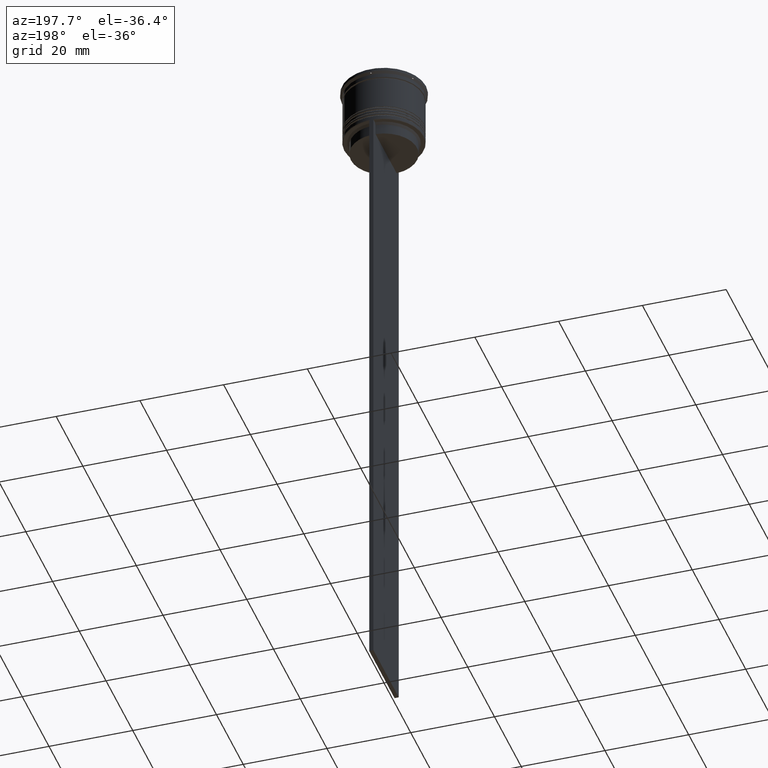
[diagram: clean part render]
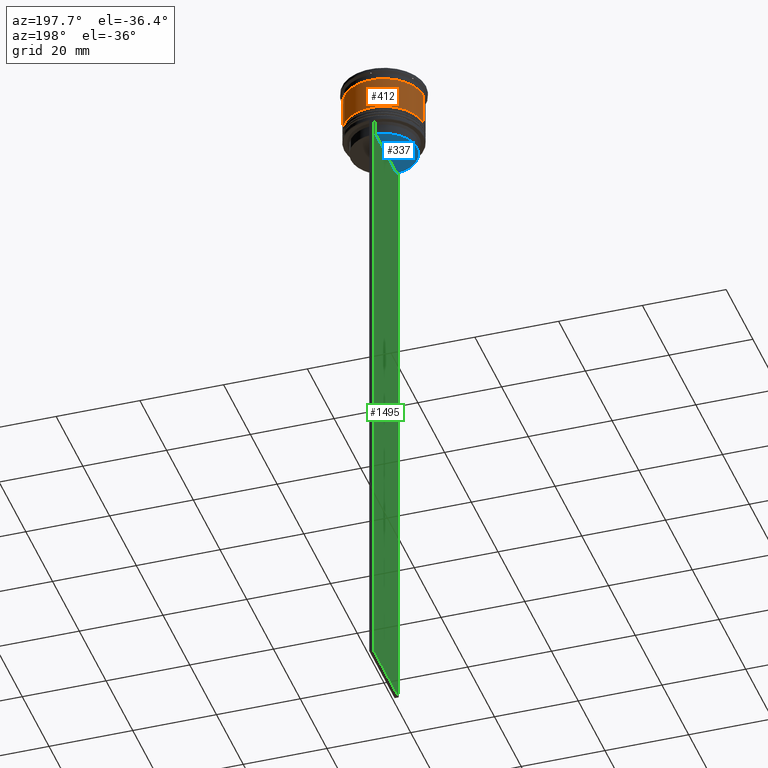
[diagram: same view with three faces highlighted in distinct colors, each labeled with its STEP entity id]
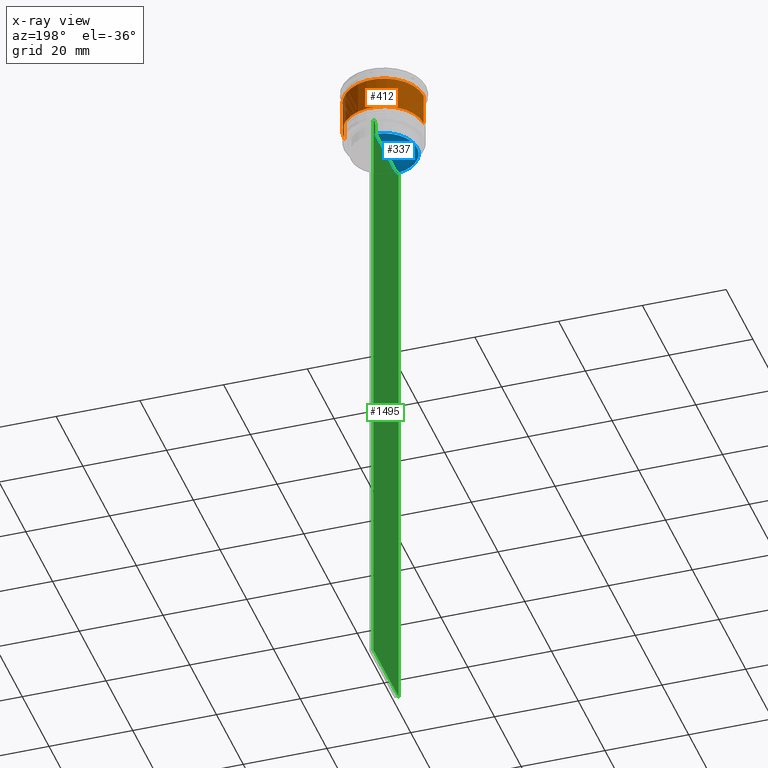
[diagram: x-ray of the same camera — body ghosted, the three highlighted faces saturated]
A machine part, auxiliary view with three faces highlighted in distinct colors.
The next image is the same camera in x-ray (body ghosted, the three faces saturated) — at least one of them is partly hidden behind the body in this view.
Their STEP definitions:

[orange] entity #412 — the highlighted cylindrical surface (partial cylindrical patch) has radius 9.5 mm, axis along (-0, -0, 1).
#156 = CARTESIAN_POINT ( 'NONE',  ( 0.000000000000000000, 0.000000000000000000, -10.50000000000000000 ) ) ;
#196 = DIRECTION ( 'NONE',  ( 1.000000000000000000, 0.000000000000000000, 0.000000000000000000 ) ) ;
#296 = FACE_OUTER_BOUND ( 'NONE', #2105, .T. ) ;
#319 = CARTESIAN_POINT ( 'NONE',  ( 0.000000000000000000, 0.000000000000000000, -2.700000000000001066 ) ) ;
#349 = CIRCLE ( 'NONE', #999, 9.499999999999998224 ) ;
#408 = VERTEX_POINT ( 'NONE', #1107 ) ;
#412 = ADVANCED_FACE ( 'NONE', ( #296 ), #1442, .T. ) ;
#451 = VECTOR ( 'NONE', #738, 1000.000000000000000 ) ;
#528 = CARTESIAN_POINT ( 'NONE',  ( 9.500000000000001776, 0.000000000000000000, -10.50000000000000000 ) ) ;
#563 = AXIS2_PLACEMENT_3D ( 'NONE', #156, #603, #196 ) ;
#603 = DIRECTION ( 'NONE',  ( -0.000000000000000000, -0.000000000000000000, 1.000000000000000000 ) ) ;
#736 = EDGE_CURVE ( 'NONE', #408, #2333, #1173, .T. ) ;
#738 = DIRECTION ( 'NONE',  ( -0.000000000000000000, -0.000000000000000000, 1.000000000000000000 ) ) ;
#760 = CARTESIAN_POINT ( 'NONE',  ( 9.500000000000000000, 0.000000000000000000, 0.000000000000000000 ) ) ;
#763 = CARTESIAN_POINT ( 'NONE',  ( -9.500000000000000000, 1.163414459189985485E-15, 0.000000000000000000 ) ) ;
#889 = EDGE_CURVE ( 'NONE', #2398, #408, #1131, .T. ) ;
#936 = DIRECTION ( 'NONE',  ( 1.000000000000000000, 0.000000000000000000, 0.000000000000000000 ) ) ;
#957 = DIRECTION ( 'NONE',  ( -0.000000000000000000, -0.000000000000000000, 1.000000000000000000 ) ) ;
#999 = AXIS2_PLACEMENT_3D ( 'NONE', #319, #2534, #936 ) ;
#1004 = DIRECTION ( 'NONE',  ( -0.000000000000000000, -0.000000000000000000, 1.000000000000000000 ) ) ;
#1074 = ORIENTED_EDGE ( 'NONE', *, *, #1361, .F. ) ;
#1107 = CARTESIAN_POINT ( 'NONE',  ( -9.500000000000001776, 1.163414459189985682E-15, -10.50000000000000000 ) ) ;
#1131 = CIRCLE ( 'NONE', #563, 9.500000000000001776 ) ;
#1173 = LINE ( 'NONE', #763, #2629 ) ;
#1361 = EDGE_CURVE ( 'NONE', #1977, #2333, #349, .T. ) ;
#1442 = CYLINDRICAL_SURFACE ( 'NONE', #2293, 9.500000000000000000 ) ;
#1662 = CARTESIAN_POINT ( 'NONE',  ( 9.499999999999998224, 0.000000000000000000, -2.700000000000001066 ) ) ;
#1731 = ORIENTED_EDGE ( 'NONE', *, *, #889, .T. ) ;
#1762 = LINE ( 'NONE', #760, #451 ) ;
#1977 = VERTEX_POINT ( 'NONE', #1662 ) ;
#2041 = CARTESIAN_POINT ( 'NONE',  ( 0.000000000000000000, 0.000000000000000000, 0.000000000000000000 ) ) ;
#2105 = EDGE_LOOP ( 'NONE', ( #1731, #2474, #1074, #2571 ) ) ;
#2293 = AXIS2_PLACEMENT_3D ( 'NONE', #2041, #1004, #2642 ) ;
#2333 = VERTEX_POINT ( 'NONE', #2340 ) ;
#2340 = CARTESIAN_POINT ( 'NONE',  ( -9.499999999999998224, 1.163414459189985485E-15, -2.700000000000001066 ) ) ;
#2398 = VERTEX_POINT ( 'NONE', #528 ) ;
#2474 = ORIENTED_EDGE ( 'NONE', *, *, #736, .T. ) ;
#2483 = EDGE_CURVE ( 'NONE', #2398, #1977, #1762, .T. ) ;
#2534 = DIRECTION ( 'NONE',  ( -0.000000000000000000, -0.000000000000000000, 1.000000000000000000 ) ) ;
#2571 = ORIENTED_EDGE ( 'NONE', *, *, #2483, .F. ) ;
#2629 = VECTOR ( 'NONE', #957, 1000.000000000000000 ) ;
#2642 = DIRECTION ( 'NONE',  ( 1.000000000000000000, 0.000000000000000000, 0.000000000000000000 ) ) ;

[blue] entity #337 — the highlighted planar face has unit normal (0, -0, 1).
#82 = CARTESIAN_POINT ( 'NONE',  ( -0.5000000000000000000, 7.899999999999994138, -17.00000000000000000 ) ) ;
#85 = AXIS2_PLACEMENT_3D ( 'NONE', #1532, #1306, #2614 ) ;
#337 = ADVANCED_FACE ( 'NONE', ( #722 ), #1942, .F. ) ;
#366 = VERTEX_POINT ( 'NONE', #2134 ) ;
#461 = ORIENTED_EDGE ( 'NONE', *, *, #1827, .F. ) ;
#701 = VERTEX_POINT ( 'NONE', #1733 ) ;
#722 = FACE_OUTER_BOUND ( 'NONE', #778, .T. ) ;
#739 = DIRECTION ( 'NONE',  ( -0.000000000000000000, -0.000000000000000000, 1.000000000000000000 ) ) ;
#778 = EDGE_LOOP ( 'NONE', ( #461, #1063 ) ) ;
#825 = VECTOR ( 'NONE', #1938, 1000.000000000000000 ) ;
#1063 = ORIENTED_EDGE ( 'NONE', *, *, #1319, .T. ) ;
#1306 = DIRECTION ( 'NONE',  ( 0.000000000000000000, -0.000000000000000000, 1.000000000000000000 ) ) ;
#1319 = EDGE_CURVE ( 'NONE', #366, #701, #1515, .T. ) ;
#1515 = LINE ( 'NONE', #82, #825 ) ;
#1532 = CARTESIAN_POINT ( 'NONE',  ( 0.000000000000000000, 7.899999999999994138, -17.00000000000000000 ) ) ;
#1643 = AXIS2_PLACEMENT_3D ( 'NONE', #2530, #739, #2186 ) ;
#1733 = CARTESIAN_POINT ( 'NONE',  ( -0.5000000000000000000, -7.884161337770803080, -17.00000000000000000 ) ) ;
#1827 = EDGE_CURVE ( 'NONE', #366, #701, #2346, .T. ) ;
#1938 = DIRECTION ( 'NONE',  ( 0.000000000000000000, -1.000000000000000000, 0.000000000000000000 ) ) ;
#1942 = PLANE ( 'NONE',  #85 ) ;
#2134 = CARTESIAN_POINT ( 'NONE',  ( -0.5000000000000000000, 7.884161337770803080, -17.00000000000000000 ) ) ;
#2186 = DIRECTION ( 'NONE',  ( 1.000000000000000000, 0.000000000000000000, 0.000000000000000000 ) ) ;
#2346 = CIRCLE ( 'NONE', #1643, 7.899999999999994138 ) ;
#2530 = CARTESIAN_POINT ( 'NONE',  ( 0.000000000000000000, 0.000000000000000000, -17.00000000000000000 ) ) ;
#2614 = DIRECTION ( 'NONE',  ( 1.000000000000000000, 0.000000000000000000, 0.000000000000000000 ) ) ;

[green] entity #1495 — the highlighted planar face has unit normal (-1, 0, 0).
#63 = DIRECTION ( 'NONE',  ( 0.000000000000000000, -1.000000000000000000, 0.000000000000000000 ) ) ;
#82 = CARTESIAN_POINT ( 'NONE',  ( -0.5000000000000000000, 7.899999999999994138, -17.00000000000000000 ) ) ;
#89 = CARTESIAN_POINT ( 'NONE',  ( -0.5000000000000000000, -9.500000000000001776, -14.00000000000000178 ) ) ;
#90 = VECTOR ( 'NONE', #1500, 1000.000000000000000 ) ;
#118 = CARTESIAN_POINT ( 'NONE',  ( -0.5000000000000000000, -9.500000000000001776, -14.00000000000000178 ) ) ;
#149 = ORIENTED_EDGE ( 'NONE', *, *, #1824, .F. ) ;
#155 = EDGE_CURVE ( 'NONE', #564, #240, #263, .T. ) ;
#171 = CARTESIAN_POINT ( 'NONE',  ( -0.5000000000000000000, -9.500000000000001776, 5.026297590440445440 ) ) ;
#193 = CARTESIAN_POINT ( 'NONE',  ( -0.5000000000000000000, 8.218133718559618828, -14.16667606394327983 ) ) ;
#240 = VERTEX_POINT ( 'NONE', #627 ) ;
#263 = LINE ( 'NONE', #1688, #2495 ) ;
#280 = VERTEX_POINT ( 'NONE', #2525 ) ;
#327 = DIRECTION ( 'NONE',  ( 0.000000000000000000, 0.000000000000000000, -1.000000000000000000 ) ) ;
#366 = VERTEX_POINT ( 'NONE', #2134 ) ;
#369 = DIRECTION ( 'NONE',  ( 0.000000000000000000, 0.000000000000000000, 1.000000000000000000 ) ) ;
#374 = CARTESIAN_POINT ( 'NONE',  ( -0.5000000000000000000, -8.385105843100605583, -14.00000000000000178 ) ) ;
#505 = LINE ( 'NONE', #89, #2307 ) ;
#519 = CARTESIAN_POINT ( 'NONE',  ( -0.5000000000000000000, 9.499999999999998224, 5.026297590440445440 ) ) ;
#521 = EDGE_LOOP ( 'NONE', ( #1958, #1493, #2141, #777, #2171, #1527, #892, #2576, #149, #1875, #921, #2513 ) ) ;
#554 = CARTESIAN_POINT ( 'NONE',  ( -0.5000000000000000000, -7.884161337770803080, 0.000000000000000000 ) ) ;
#564 = VERTEX_POINT ( 'NONE', #895 ) ;
#627 = CARTESIAN_POINT ( 'NONE',  ( -0.5000000000000000000, 9.499999999999998224, -163.9999999999999716 ) ) ;
#674 = CARTESIAN_POINT ( 'NONE',  ( -0.5000000000000000000, -7.884161337770803080, -14.50000000000000000 ) ) ;
#701 = VERTEX_POINT ( 'NONE', #1733 ) ;
#714 = DIRECTION ( 'NONE',  ( 0.000000000000000000, -1.000000000000000000, 0.000000000000000000 ) ) ;
#742 = VERTEX_POINT ( 'NONE', #2180 ) ;
#764 = EDGE_CURVE ( 'NONE', #2608, #240, #2368, .T. ) ;
#765 = PLANE ( 'NONE',  #1854 ) ;
#777 = ORIENTED_EDGE ( 'NONE', *, *, #764, .T. ) ;
#789 = VECTOR ( 'NONE', #2663, 1000.000000000000000 ) ;
#797 = VERTEX_POINT ( 'NONE', #2584 ) ;
#825 = VECTOR ( 'NONE', #1938, 1000.000000000000000 ) ;
#873 = DIRECTION ( 'NONE',  ( 0.000000000000000000, 1.000000000000000000, 0.000000000000000000 ) ) ;
#892 = ORIENTED_EDGE ( 'NONE', *, *, #2329, .F. ) ;
#895 = CARTESIAN_POINT ( 'NONE',  ( -0.5000000000000000000, -9.500000000000001776, -163.9999999999999716 ) ) ;
#921 = ORIENTED_EDGE ( 'NONE', *, *, #1319, .F. ) ;
#945 = CARTESIAN_POINT ( 'NONE',  ( -0.5000000000000000000, 7.884161337770803080, 0.000000000000000000 ) ) ;
#961 = VECTOR ( 'NONE', #63, 1000.000000000000000 ) ;
#977 = CARTESIAN_POINT ( 'NONE',  ( -0.5000000000000000000, -9.500000000000001776, -14.00000000000000178 ) ) ;
#1001 = DIRECTION ( 'NONE',  ( -1.000000000000000000, 0.000000000000000000, 0.000000000000000000 ) ) ;
#1016 = FACE_OUTER_BOUND ( 'NONE', #521, .T. ) ;
#1045 = LINE ( 'NONE', #1646, #1426 ) ;
#1046 = VECTOR ( 'NONE', #1369, 1000.000000000000000 ) ;
#1077 = VERTEX_POINT ( 'NONE', #374 ) ;
#1125 = VERTEX_POINT ( 'NONE', #1417 ) ;
#1152 = EDGE_CURVE ( 'NONE', #1125, #564, #1045, .T. ) ;
#1169 = VECTOR ( 'NONE', #1755, 1000.000000000000000 ) ;
#1174 = B_SPLINE_CURVE_WITH_KNOTS ( 'NONE', 3,
 ( #674, #2326, #1293, #2122 ),
 .UNSPECIFIED., .F., .F.,
 ( 4, 4 ),
 ( 0.03673372442973153046, 0.03744389749832059688 ),
 .UNSPECIFIED. ) ;
#1293 = CARTESIAN_POINT ( 'NONE',  ( -0.5000000000000000000, -8.218133703942523738, -14.16667607853445787 ) ) ;
#1319 = EDGE_CURVE ( 'NONE', #366, #701, #1515, .T. ) ;
#1331 = EDGE_CURVE ( 'NONE', #280, #366, #2167, .T. ) ;
#1350 = VERTEX_POINT ( 'NONE', #2574 ) ;
#1369 = DIRECTION ( 'NONE',  ( -0.000000000000000000, -0.000000000000000000, 1.000000000000000000 ) ) ;
#1375 = EDGE_CURVE ( 'NONE', #1077, #742, #1967, .T. ) ;
#1395 = CARTESIAN_POINT ( 'NONE',  ( -0.5000000000000000000, 9.499999999999994671, -14.00000000000000178 ) ) ;
#1400 = LINE ( 'NONE', #554, #1046 ) ;
#1417 = CARTESIAN_POINT ( 'NONE',  ( -0.5000000000000000000, -9.500000000000001776, -14.00000000000000178 ) ) ;
#1426 = VECTOR ( 'NONE', #1474, 1000.000000000000000 ) ;
#1459 = EDGE_CURVE ( 'NONE', #701, #2044, #1400, .T. ) ;
#1474 = DIRECTION ( 'NONE',  ( 0.000000000000000000, 0.000000000000000000, -1.000000000000000000 ) ) ;
#1493 = ORIENTED_EDGE ( 'NONE', *, *, #2205, .F. ) ;
#1495 = ADVANCED_FACE ( 'NONE', ( #1016 ), #765, .T. ) ;
#1500 = DIRECTION ( 'NONE',  ( 0.000000000000000000, -1.000000000000000000, 0.000000000000000000 ) ) ;
#1515 = LINE ( 'NONE', #82, #825 ) ;
#1527 = ORIENTED_EDGE ( 'NONE', *, *, #1152, .F. ) ;
#1550 = VECTOR ( 'NONE', #327, 1000.000000000000000 ) ;
#1646 = CARTESIAN_POINT ( 'NONE',  ( -0.5000000000000000000, -9.500000000000001776, 5.026297590440445440 ) ) ;
#1650 = CARTESIAN_POINT ( 'NONE',  ( -0.5000000000000000000, 8.051152811434374001, -14.33334332653219079 ) ) ;
#1688 = CARTESIAN_POINT ( 'NONE',  ( -0.5000000000000000000, -9.500000000000001776, -163.9999999999999716 ) ) ;
#1733 = CARTESIAN_POINT ( 'NONE',  ( -0.5000000000000000000, -7.884161337770803080, -17.00000000000000000 ) ) ;
#1755 = DIRECTION ( 'NONE',  ( 0.000000000000000000, 0.000000000000000000, -1.000000000000000000 ) ) ;
#1824 = EDGE_CURVE ( 'NONE', #2044, #1077, #1174, .T. ) ;
#1854 = AXIS2_PLACEMENT_3D ( 'NONE', #171, #1001, #369 ) ;
#1875 = ORIENTED_EDGE ( 'NONE', *, *, #1459, .F. ) ;
#1938 = DIRECTION ( 'NONE',  ( 0.000000000000000000, -1.000000000000000000, 0.000000000000000000 ) ) ;
#1958 = ORIENTED_EDGE ( 'NONE', *, *, #2613, .F. ) ;
#1967 = LINE ( 'NONE', #118, #90 ) ;
#2003 = LINE ( 'NONE', #977, #789 ) ;
#2044 = VERTEX_POINT ( 'NONE', #2079 ) ;
#2079 = CARTESIAN_POINT ( 'NONE',  ( -0.5000000000000000000, -7.884161337770803080, -14.50000000000000000 ) ) ;
#2094 = LINE ( 'NONE', #2365, #961 ) ;
#2122 = CARTESIAN_POINT ( 'NONE',  ( -0.5000000000000000000, -8.385105843100605583, -14.00000000000000178 ) ) ;
#2134 = CARTESIAN_POINT ( 'NONE',  ( -0.5000000000000000000, 7.884161337770803080, -17.00000000000000000 ) ) ;
#2141 = ORIENTED_EDGE ( 'NONE', *, *, #2294, .F. ) ;
#2167 = LINE ( 'NONE', #945, #1169 ) ;
#2171 = ORIENTED_EDGE ( 'NONE', *, *, #155, .F. ) ;
#2180 = CARTESIAN_POINT ( 'NONE',  ( -0.5000000000000000000, -9.386692708297204035, -14.00000000000000178 ) ) ;
#2205 = EDGE_CURVE ( 'NONE', #1350, #797, #2003, .T. ) ;
#2227 = CARTESIAN_POINT ( 'NONE',  ( -0.5000000000000000000, 8.385105843100605583, -14.00000000000000178 ) ) ;
#2294 = EDGE_CURVE ( 'NONE', #2608, #1350, #505, .T. ) ;
#2307 = VECTOR ( 'NONE', #714, 1000.000000000000000 ) ;
#2326 = CARTESIAN_POINT ( 'NONE',  ( -0.5000000000000000000, -8.051152795888546265, -14.33334334204685057 ) ) ;
#2329 = EDGE_CURVE ( 'NONE', #742, #1125, #2094, .T. ) ;
#2365 = CARTESIAN_POINT ( 'NONE',  ( -0.5000000000000000000, -9.500000000000001776, -14.00000000000000178 ) ) ;
#2368 = LINE ( 'NONE', #519, #1550 ) ;
#2438 = CARTESIAN_POINT ( 'NONE',  ( -0.5000000000000000000, 7.884161337770803080, -14.50000000000000000 ) ) ;
#2495 = VECTOR ( 'NONE', #873, 1000.000000000000000 ) ;
#2513 = ORIENTED_EDGE ( 'NONE', *, *, #1331, .F. ) ;
#2525 = CARTESIAN_POINT ( 'NONE',  ( -0.5000000000000000000, 7.884161337770803080, -14.50000000000000000 ) ) ;
#2574 = CARTESIAN_POINT ( 'NONE',  ( -0.5000000000000000000, 9.386692708297204035, -14.00000000000000178 ) ) ;
#2576 = ORIENTED_EDGE ( 'NONE', *, *, #1375, .F. ) ;
#2584 = CARTESIAN_POINT ( 'NONE',  ( -0.5000000000000000000, 8.385105843100605583, -14.00000000000000178 ) ) ;
#2608 = VERTEX_POINT ( 'NONE', #1395 ) ;
#2613 = EDGE_CURVE ( 'NONE', #797, #280, #2618, .T. ) ;
#2618 = B_SPLINE_CURVE_WITH_KNOTS ( 'NONE', 3,
 ( #2227, #193, #1650, #2438 ),
 .UNSPECIFIED., .F., .F.,
 ( 4, 4 ),
 ( 0.01426761478740281447, 0.01497538974438914448 ),
 .UNSPECIFIED. ) ;
#2663 = DIRECTION ( 'NONE',  ( 0.000000000000000000, -1.000000000000000000, 0.000000000000000000 ) ) ;